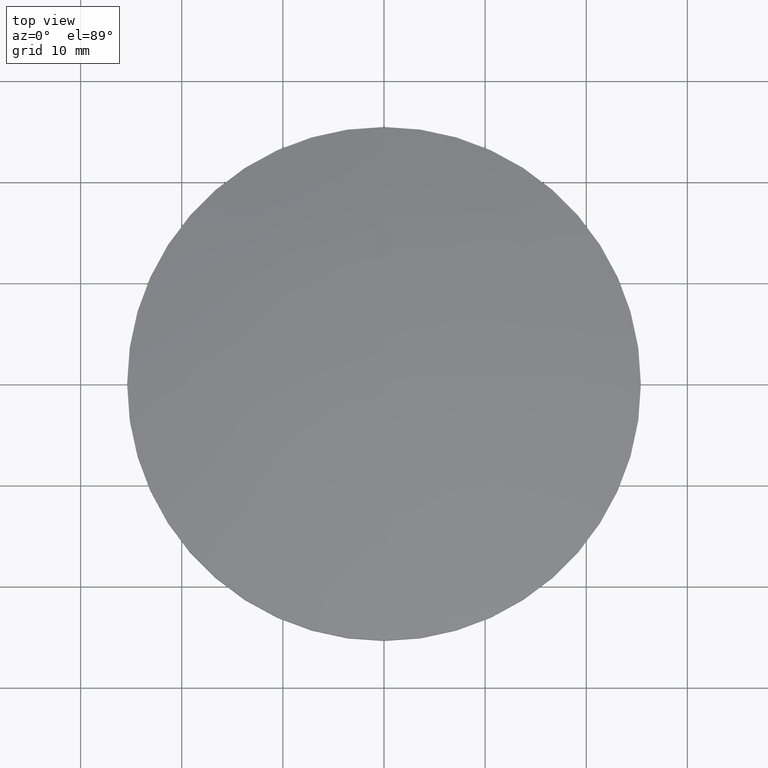
[diagram: clean part render]
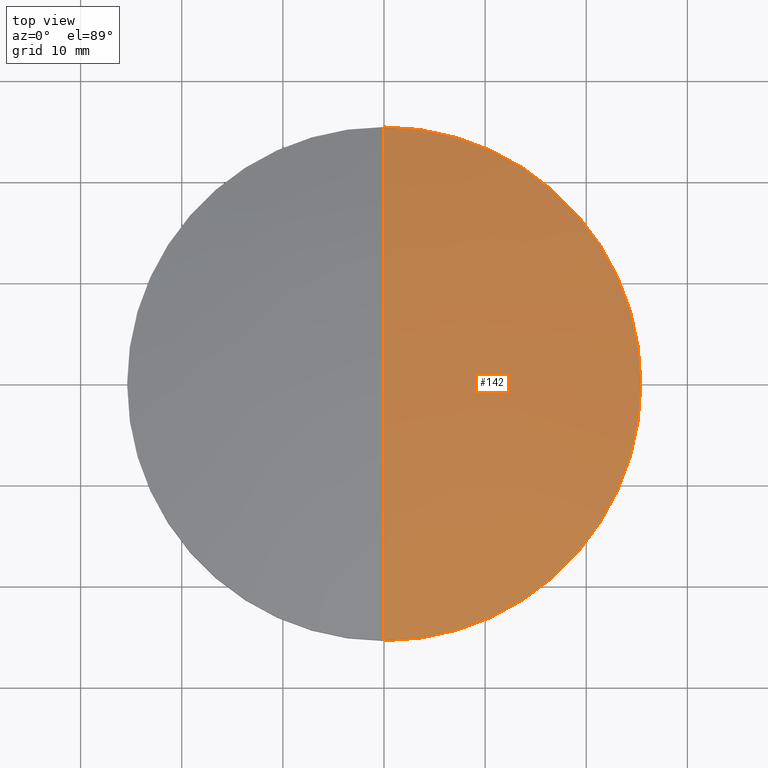
[diagram: same view with one face highlighted and labeled with its STEP entity id]
A machine part, top view. The second image highlights one B-rep face of the part: STEP entity #142.
In plain terms, the highlighted face is a freeform B-spline surface patch.
Its self-contained STEP definition (entity closure, byte-faithful):
#7 = CARTESIAN_POINT ( 'NONE',  ( 17.37999393760358700, 8.753207586920991500, 8.519118617901263200 ) ) ;
#19 = VERTEX_POINT ( 'NONE', #23 ) ;
#23 = CARTESIAN_POINT ( 'NONE',  ( 2.131628207280299900E-014, -25.40000000000001300, 5.296569062707712700 ) ) ;
#26 = DIRECTION ( 'NONE',  ( -0.0000000000000000000, -0.0000000000000000000, -1.000000000000000000 ) ) ;
#27 = CARTESIAN_POINT ( 'NONE',  ( 4.510281037539698400E-014, 25.69826089171852600, 5.219641420988648600 ) ) ;
#30 = CARTESIAN_POINT ( 'NONE',  ( 16.64093072215191800, -25.69826089171851500, 4.168121886865968400 ) ) ;
#31 = CARTESIAN_POINT ( 'NONE',  ( 4.510281037539698400E-014, -8.753207586920986200, 9.617338629357462300 ) ) ;
#40 = AXIS2_PLACEMENT_3D ( 'NONE', #236, #26, #257 ) ;
#48 = CARTESIAN_POINT ( 'NONE',  ( 16.64093072215192800, 25.69826089171852200, 4.168121886865981700 ) ) ;
#55 = VERTEX_POINT ( 'NONE', #231 ) ;
#61 = CIRCLE ( 'NONE', #273, 25.39999999999999900 ) ;
#70 = CARTESIAN_POINT ( 'NONE',  ( 8.353687461122639500, 25.69826089171852600, 5.219641420988647700 ) ) ;
#76 = ORIENTED_EDGE ( 'NONE', *, *, #156, .F. ) ;
#79 = CIRCLE ( 'NONE', #167, 102.3000000000000000 ) ;
#91 = CARTESIAN_POINT ( 'NONE',  ( 4.510281037539698400E-014, -25.69826089171851200, 5.219641420988635300 ) ) ;
#121 = DIRECTION ( 'NONE',  ( -1.000000000000000000, 0.0000000000000000000, 0.0000000000000000000 ) ) ;
#125 = DIRECTION ( 'NONE',  ( 1.000000000000000000, 8.881784197001252300E-016, 0.0000000000000000000 ) ) ;
#126 = FACE_OUTER_BOUND ( 'NONE', #244, .T. ) ;
#135 = EDGE_CURVE ( 'NONE', #19, #55, #79, .T. ) ;
#142 = ADVANCED_FACE ( 'NONE', ( #126 ), #153, .T. ) ;
#143 = CARTESIAN_POINT ( 'NONE',  ( 8.724694541133912300, -8.753207586920982700, 9.617338629357458800 ) ) ;
#146 = CARTESIAN_POINT ( 'NONE',  ( 25.82821182092975600, 8.753207586920989800, 6.340148808119813000 ) ) ;
#151 = DIRECTION ( 'NONE',  ( -0.0000000000000000000, -0.0000000000000000000, -1.000000000000000000 ) ) ;
#153 =( BOUNDED_SURFACE ( )  B_SPLINE_SURFACE ( 3, 3, ( 
 ( #233, #30, #256, #91 ),
 ( #260, #280, #143, #31 ),
 ( #146, #7, #239, #282 ),
 ( #210, #48, #70, #27 ) ),
 .UNSPECIFIED., .F., .F., .T. ) 
 B_SPLINE_SURFACE_WITH_KNOTS ( ( 4, 4 ),
 ( 4, 4 ),
 ( 0.0000000000000000000, 1.000000000000000000 ),
 ( 0.0000000000000000000, 1.000000000000000000 ),
 .UNSPECIFIED. ) 
 GEOMETRIC_REPRESENTATION_ITEM ( )  RATIONAL_B_SPLINE_SURFACE ( (
 ( 1.000000000000000000, 0.9946974155303642800, 0.9946974155303642800, 1.000000000000000000),
 ( 0.9786226224893361800, 0.9734333933696900400, 0.9734333933696900400, 0.9786226224893361800),
 ( 0.9786226224893361800, 0.9734333933696900400, 0.9734333933696900400, 0.9786226224893361800),
 ( 1.000000000000000000, 0.9946974155303642800, 0.9946974155303642800, 1.000000000000000000) ) ) 
 REPRESENTATION_ITEM ( '' )  SURFACE ( )  );
#156 = EDGE_CURVE ( 'NONE', #274, #19, #250, .T. ) ;
#167 = AXIS2_PLACEMENT_3D ( 'NONE', #189, #121, #279 ) ;
#189 = CARTESIAN_POINT ( 'NONE',  ( 2.131628207280299900E-014, 1.421085471520200100E-014, -93.79999999999999700 ) ) ;
#190 = EDGE_CURVE ( 'NONE', #55, #274, #61, .T. ) ;
#210 = CARTESIAN_POINT ( 'NONE',  ( 24.72989836085182300, 25.69826089171852200, 2.081810132074118700 ) ) ;
#231 = CARTESIAN_POINT ( 'NONE',  ( 2.131628207280299900E-014, 25.40000000000002700, 5.296569062707712700 ) ) ;
#233 = CARTESIAN_POINT ( 'NONE',  ( 24.72989836085181300, -25.69826089171851500, 2.081810132074104900 ) ) ;
#236 = CARTESIAN_POINT ( 'NONE',  ( 9.992007221626412800E-016, 4.884981308350691100E-015, 5.296569062707710000 ) ) ;
#239 = CARTESIAN_POINT ( 'NONE',  ( 8.724694541133912300, 8.753207586920991500, 9.617338629357471200 ) ) ;
#244 = EDGE_LOOP ( 'NONE', ( #254, #76, #285 ) ) ;
#250 = CIRCLE ( 'NONE', #40, 25.39999999999999900 ) ;
#254 = ORIENTED_EDGE ( 'NONE', *, *, #135, .F. ) ;
#256 = CARTESIAN_POINT ( 'NONE',  ( 8.353687461122635900, -25.69826089171851200, 5.219641420988633500 ) ) ;
#257 = DIRECTION ( 'NONE',  ( 1.000000000000000000, 0.0000000000000000000, 0.0000000000000000000 ) ) ;
#260 = CARTESIAN_POINT ( 'NONE',  ( 25.82821182092975600, -8.753207586920988000, 6.340148808119800500 ) ) ;
#265 = CARTESIAN_POINT ( 'NONE',  ( 9.992007221626412800E-016, 4.884981308350691100E-015, 5.296569062707710000 ) ) ;
#273 = AXIS2_PLACEMENT_3D ( 'NONE', #265, #151, #125 ) ;
#274 = VERTEX_POINT ( 'NONE', #289 ) ;
#279 = DIRECTION ( 'NONE',  ( 0.0000000000000000000, -1.000000000000000000, 5.426309993280335100E-016 ) ) ;
#280 = CARTESIAN_POINT ( 'NONE',  ( 17.37999393760358300, -8.753207586920982700, 8.519118617901252600 ) ) ;
#282 = CARTESIAN_POINT ( 'NONE',  ( 4.510281037539698400E-014, 8.753207586920991500, 9.617338629357473000 ) ) ;
#285 = ORIENTED_EDGE ( 'NONE', *, *, #190, .F. ) ;
#289 = CARTESIAN_POINT ( 'NONE',  ( 25.39999999999999900, 4.884981308350691100E-015, 5.296569062707710000 ) ) ;